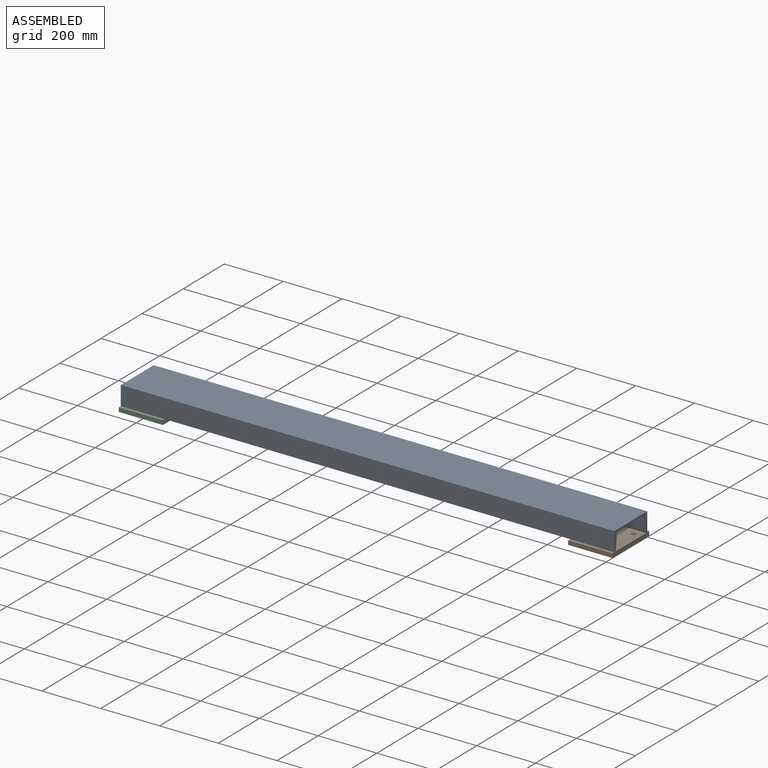
[diagram: assembled view]
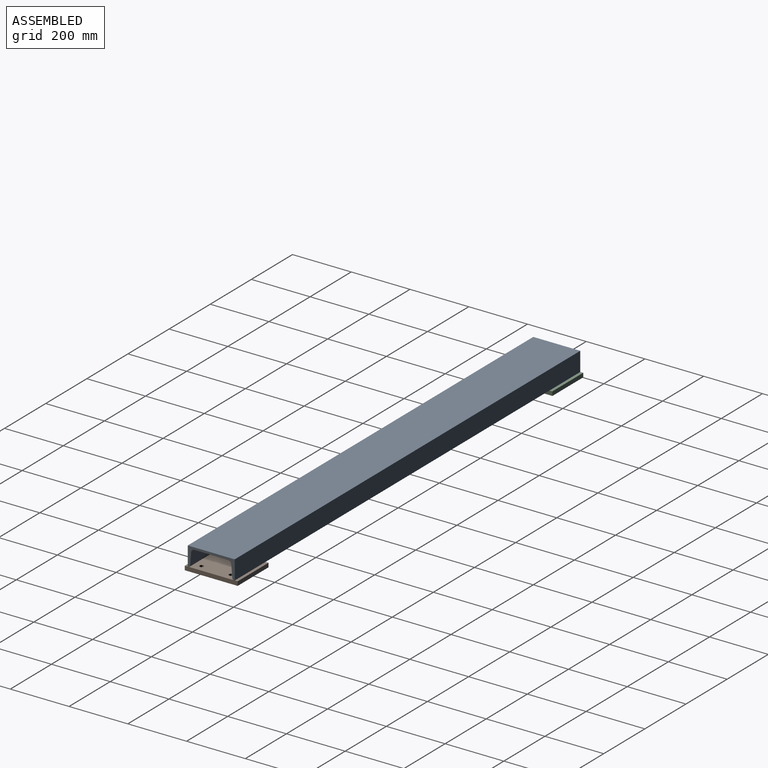
[diagram: assembled view, second angle]
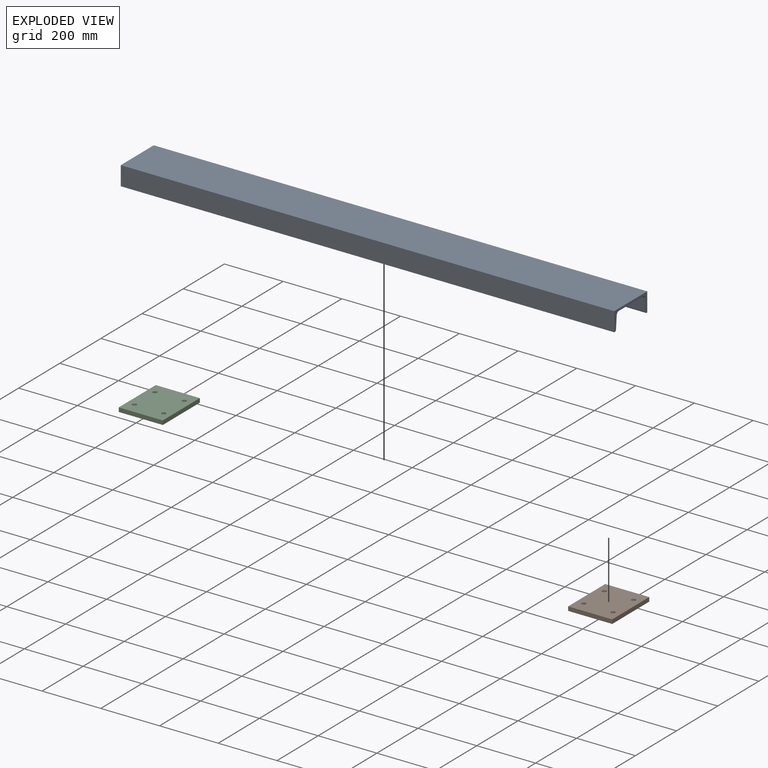
[diagram: exploded view]
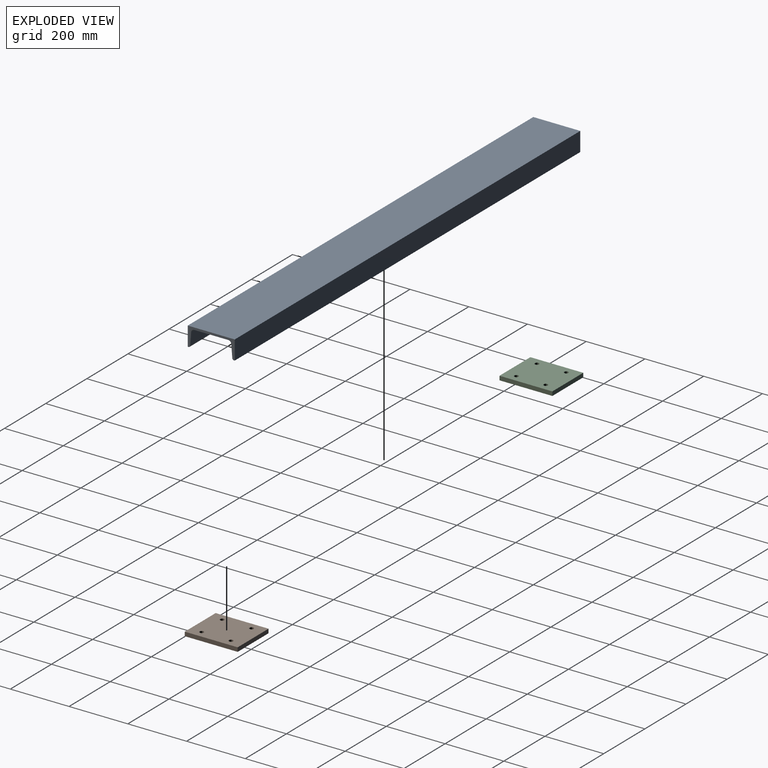
[diagram: exploded view, second angle]
ASSEMBLY  parts=3 mates=2
PART A: 14 faces, bbox 1680x160x65 mm
  f0: plane 160x65mm, normal (-1,0,0), area 2401.4mm2, adj f2,f3,f4,f5,f6,f7,f8,f9
  f1: plane 160x65mm, normal (1,0,0), area 2401.4mm2, adj f2,f3,f4,f5,f6,f7,f8,f9
  f2: plane 1680x65mm, normal (0,-1,0), area 109200mm2, adj f0,f1,f3,f13
  f3: plane 1680x2.82mm, normal (0,0,-1), area 4741.6mm2, adj f0,f1,f2,f4
  f4: cylinder r=5.5mm len=1680mm, axis (1,0,0), area 13776.6mm2, adj f0,f1,f3,f5
  f5: plane 1680x42.78mm, normal (0,1,-0.08), area 72093.1mm2, adj f0,f1,f4,f6
  f6: cylinder r=10.5mm len=1680mm, axis (1,0,0), area 26300.6mm2, adj f0,f1,f5,f7
  f7: plane 1680x115.61mm, normal (0,0,-1), area 194229.8mm2, adj f0,f1,f6,f8
  f8: cylinder r=10.5mm len=1680mm, axis (1,0,0), area 26300.6mm2, adj f0,f1,f7,f9
  f9: plane 1680x42.78mm, normal (0,-1,-0.08), area 72093.1mm2, adj f0,f1,f8,f10
  f10: cylinder r=5.5mm len=1680mm, axis (1,0,0), area 13776.6mm2, adj f0,f1,f9,f11
  f11: plane 1680x2.82mm, normal (0,0,-1), area 4741.6mm2, adj f0,f1,f10,f12
  f12: plane 1680x65mm, normal (0,1,0), area 109200mm2, adj f0,f1,f11,f13
  f13: plane 1680x160mm, normal (0,0,1), area 268800mm2, adj f0,f1,f2,f12
PART B: 10 faces, bbox 150x14x180 mm
  f0: plane 180x14mm, normal (-1,0,0), area 2520mm2, adj f1,f3,f4,f5
  f1: plane 150x14mm, normal (0,0,-1), area 2100mm2, adj f0,f2,f4,f5
  f2: plane 180x14mm, normal (1,0,0), area 2520mm2, adj f1,f3,f4,f5
  f3: plane 150x14mm, normal (0,0,1), area 2100mm2, adj f0,f2,f4,f5
  f4: plane 180x150mm, normal (0,-1,0), area 26384.2mm2, adj f0,f1,f2,f3,f6,f7,f8,f9
  f5: plane 180x150mm, normal (0,1,0), area 26384.2mm2, adj f0,f1,f2,f3,f6,f7,f8,f9
  f6: cylinder r=7mm len=14mm, axis (0,-1,0), area 615.8mm2, adj f4,f5
  f7: cylinder r=7mm len=14mm, axis (0,-1,0), area 615.8mm2, adj f4,f5
  f8: cylinder r=7mm len=14mm, axis (0,-1,0), area 615.8mm2, adj f4,f5
  f9: cylinder r=7mm len=14mm, axis (0,-1,0), area 615.8mm2, adj f4,f5
PART C: same geometry as B
PLACE A at identity
PLACE B rot(axis=(-1,0,0),90deg) t=(1530,-170,-79)mm
PLACE C rot(axis=(-1,0,0),90deg) t=(0,-170,-79)mm
MATE fastened C.f4 <-> A.f3  axis (0,0,1) through (0,-170,-65)mm
MATE fastened B.f4 <-> A.f3  axis (0,0,1) through (1680,-170,-65)mm
